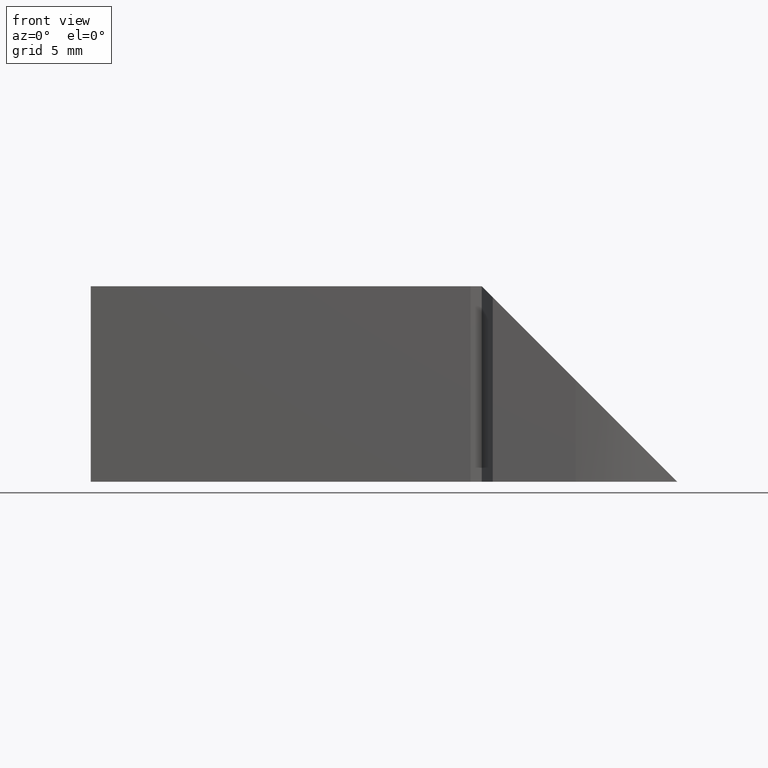
[diagram: clean part render]
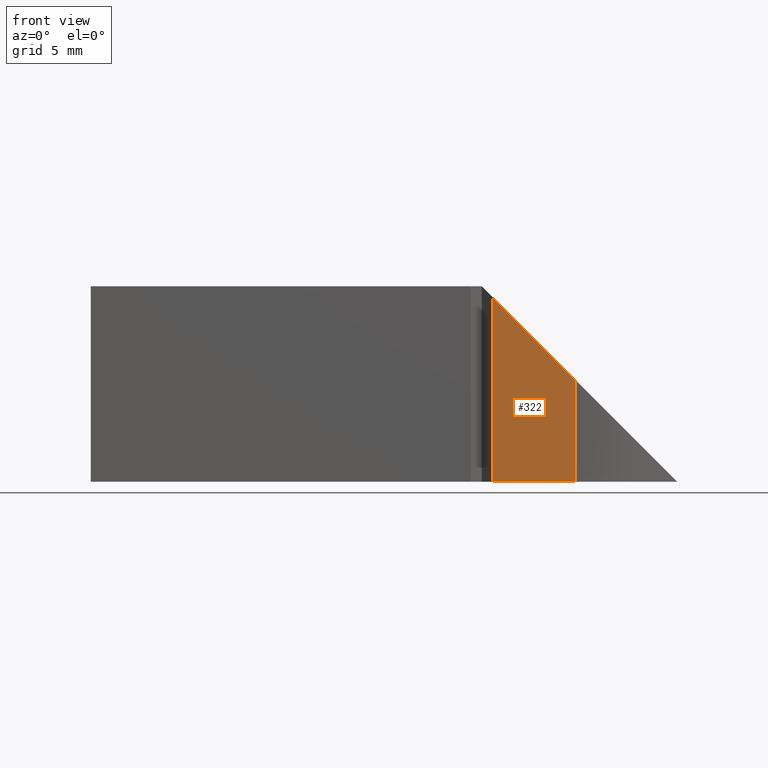
[diagram: same view with one face highlighted and labeled with its STEP entity id]
A machine part, front view. The second image highlights one B-rep face of the part: STEP entity #322.
In plain terms, the highlighted planar face has unit normal (-0, 1, 0).
Its self-contained STEP definition (entity closure, byte-faithful):
#266=CARTESIAN_POINT('',(18.665685424950855,-9.999999999996536,-1.421085E-014));
#267=VERTEX_POINT('',#266);
#274=CARTESIAN_POINT('',(18.665685424950855,-9.999999999996536,9.434314575049996));
#275=VERTEX_POINT('',#274);
#276=CARTESIAN_POINT('',(18.665685424950855,-9.999999999996536,9.434314575049989));
#277=DIRECTION('',(0.0,0.0,-1.0));
#278=VECTOR('',#277,9.434314575050003);
#279=LINE('',#276,#278);
#280=EDGE_CURVE('',#275,#267,#279,.T.);
#292=CARTESIAN_POINT('',(18.665685424950855,-9.999999999996536,9.999999999999986));
#293=DIRECTION('',(-1.795055E-013,1.0,1.224647E-016));
#294=DIRECTION('',(1.0,1.795055E-013,0.0));
#295=AXIS2_PLACEMENT_3D('',#292,#293,#294);
#296=PLANE('',#295);
#297=CARTESIAN_POINT('',(22.900000000001885,-9.999999999995776,-1.421085E-014));
#298=VERTEX_POINT('',#297);
#299=CARTESIAN_POINT('',(18.665685424950855,-9.999999999996536,-1.421085E-014));
#300=DIRECTION('',(1.0,1.795523E-013,0.0));
#301=VECTOR('',#300,4.234314575051030);
#302=LINE('',#299,#301);
#303=EDGE_CURVE('',#267,#298,#302,.T.);
#304=ORIENTED_EDGE('',*,*,#303,.T.);
#305=CARTESIAN_POINT('',(22.900000000001885,-9.999999999995776,5.199999999999434));
#306=VERTEX_POINT('',#305);
#307=CARTESIAN_POINT('',(22.900000000001885,-9.999999999995776,5.199999999999440));
#308=DIRECTION('',(0.0,0.0,-1.0));
#309=VECTOR('',#308,5.199999999999454);
#310=LINE('',#307,#309);
#311=EDGE_CURVE('',#306,#298,#310,.T.);
#312=ORIENTED_EDGE('',*,*,#311,.F.);
#313=CARTESIAN_POINT('',(22.900000000001885,-9.999999999995776,5.199999999999439));
#314=DIRECTION('',(-0.707106781186588,-1.269626E-013,0.707106781186507));
#315=VECTOR('',#314,5.988225099390896);
#316=LINE('',#313,#315);
#317=EDGE_CURVE('',#306,#275,#316,.T.);
#318=ORIENTED_EDGE('',*,*,#317,.T.);
#319=ORIENTED_EDGE('',*,*,#280,.T.);
#320=EDGE_LOOP('',(#304,#312,#318,#319));
#321=FACE_OUTER_BOUND('',#320,.T.);
#322=ADVANCED_FACE('',(#321),#296,.F.);